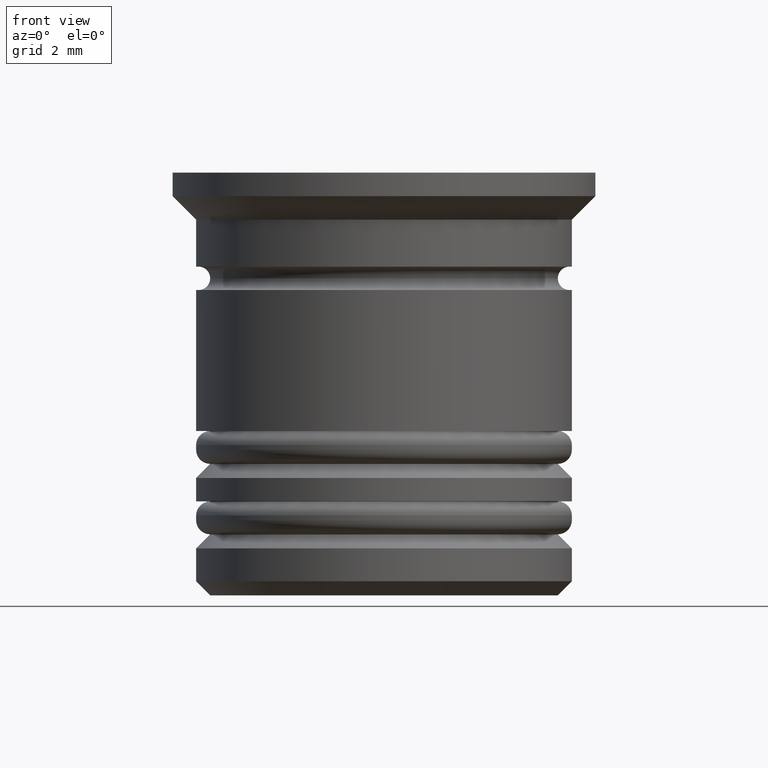
[diagram: clean part render]
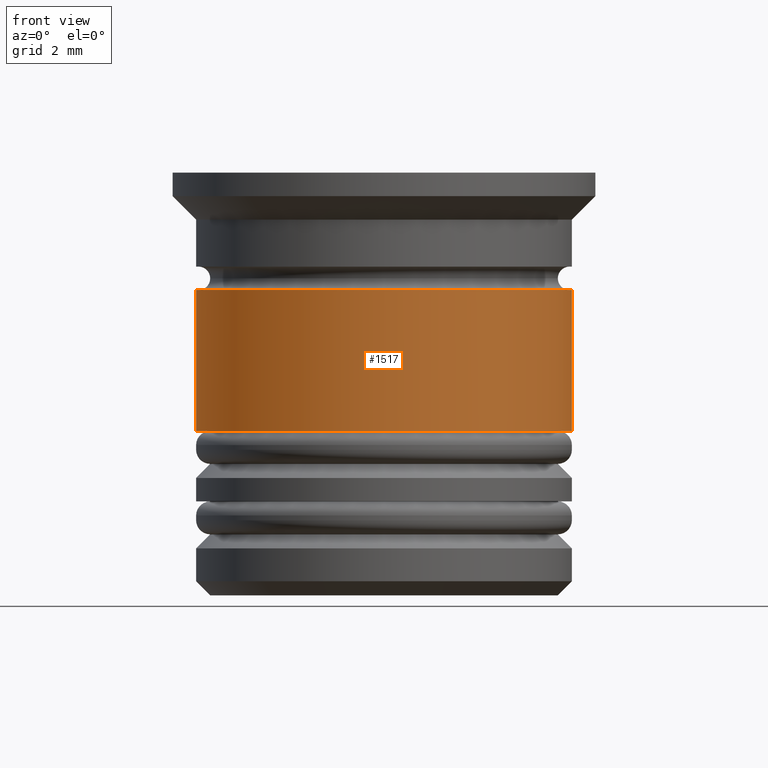
[diagram: same view with one face highlighted and labeled with its STEP entity id]
A machine part, front view. The second image highlights one B-rep face of the part: STEP entity #1517.
In plain terms, the highlighted cylindrical surface (partial cylindrical patch) has radius 4 mm, axis along (-0, -0, 1).
Its self-contained STEP definition (entity closure, byte-faithful):
#39 = VERTEX_POINT ( 'NONE', #82 ) ;
#76 = DIRECTION ( 'NONE',  ( -0.000000000000000000, -0.000000000000000000, 1.000000000000000000 ) ) ;
#82 = CARTESIAN_POINT ( 'NONE',  ( 4.000000000000000000, 0.000000000000000000, -2.500000000000001776 ) ) ;
#121 = FACE_OUTER_BOUND ( 'NONE', #133, .T. ) ;
#133 = EDGE_LOOP ( 'NONE', ( #787, #597, #743, #504 ) ) ;
#204 = CARTESIAN_POINT ( 'NONE',  ( 0.000000000000000000, 0.000000000000000000, -5.500000000000000000 ) ) ;
#226 = EDGE_CURVE ( 'NONE', #855, #39, #1441, .T. ) ;
#246 = AXIS2_PLACEMENT_3D ( 'NONE', #735, #1072, #1682 ) ;
#273 = AXIS2_PLACEMENT_3D ( 'NONE', #204, #76, #1158 ) ;
#297 = DIRECTION ( 'NONE',  ( -0.000000000000000000, -0.000000000000000000, 1.000000000000000000 ) ) ;
#460 = CARTESIAN_POINT ( 'NONE',  ( 4.000000000000000000, 0.000000000000000000, 0.000000000000000000 ) ) ;
#504 = ORIENTED_EDGE ( 'NONE', *, *, #226, .F. ) ;
#535 = CARTESIAN_POINT ( 'NONE',  ( 4.000000000000000888, 0.000000000000000000, -5.500000000000000000 ) ) ;
#597 = ORIENTED_EDGE ( 'NONE', *, *, #1781, .T. ) ;
#604 = CARTESIAN_POINT ( 'NONE',  ( 0.000000000000000000, 0.000000000000000000, 0.000000000000000000 ) ) ;
#683 = CARTESIAN_POINT ( 'NONE',  ( -4.000000000000000888, 4.898587196589413815E-16, -5.500000000000000000 ) ) ;
#735 = CARTESIAN_POINT ( 'NONE',  ( 0.000000000000000000, 0.000000000000000000, -2.500000000000001776 ) ) ;
#741 = DIRECTION ( 'NONE',  ( 1.000000000000000000, 0.000000000000000000, 0.000000000000000000 ) ) ;
#743 = ORIENTED_EDGE ( 'NONE', *, *, #1177, .T. ) ;
#773 = EDGE_CURVE ( 'NONE', #1915, #855, #1681, .T. ) ;
#787 = ORIENTED_EDGE ( 'NONE', *, *, #773, .F. ) ;
#788 = LINE ( 'NONE', #460, #1467 ) ;
#809 = VECTOR ( 'NONE', #898, 1000.000000000000000 ) ;
#855 = VERTEX_POINT ( 'NONE', #1317 ) ;
#898 = DIRECTION ( 'NONE',  ( -0.000000000000000000, -0.000000000000000000, 1.000000000000000000 ) ) ;
#916 = CYLINDRICAL_SURFACE ( 'NONE', #1630, 4.000000000000000000 ) ;
#921 = DIRECTION ( 'NONE',  ( -0.000000000000000000, -0.000000000000000000, 1.000000000000000000 ) ) ;
#1072 = DIRECTION ( 'NONE',  ( -0.000000000000000000, -0.000000000000000000, 1.000000000000000000 ) ) ;
#1158 = DIRECTION ( 'NONE',  ( 1.000000000000000000, 0.000000000000000000, 0.000000000000000000 ) ) ;
#1177 = EDGE_CURVE ( 'NONE', #1614, #39, #788, .T. ) ;
#1317 = CARTESIAN_POINT ( 'NONE',  ( -4.000000000000000000, 4.898587196589412829E-16, -2.500000000000001776 ) ) ;
#1441 = CIRCLE ( 'NONE', #246, 4.000000000000000000 ) ;
#1467 = VECTOR ( 'NONE', #921, 1000.000000000000000 ) ;
#1508 = CARTESIAN_POINT ( 'NONE',  ( -4.000000000000000000, 4.898587196589412829E-16, 0.000000000000000000 ) ) ;
#1517 = ADVANCED_FACE ( 'NONE', ( #121 ), #916, .T. ) ;
#1614 = VERTEX_POINT ( 'NONE', #535 ) ;
#1630 = AXIS2_PLACEMENT_3D ( 'NONE', #604, #297, #741 ) ;
#1681 = LINE ( 'NONE', #1508, #809 ) ;
#1682 = DIRECTION ( 'NONE',  ( 1.000000000000000000, 0.000000000000000000, 0.000000000000000000 ) ) ;
#1781 = EDGE_CURVE ( 'NONE', #1915, #1614, #2024, .T. ) ;
#1915 = VERTEX_POINT ( 'NONE', #683 ) ;
#2024 = CIRCLE ( 'NONE', #273, 4.000000000000000888 ) ;